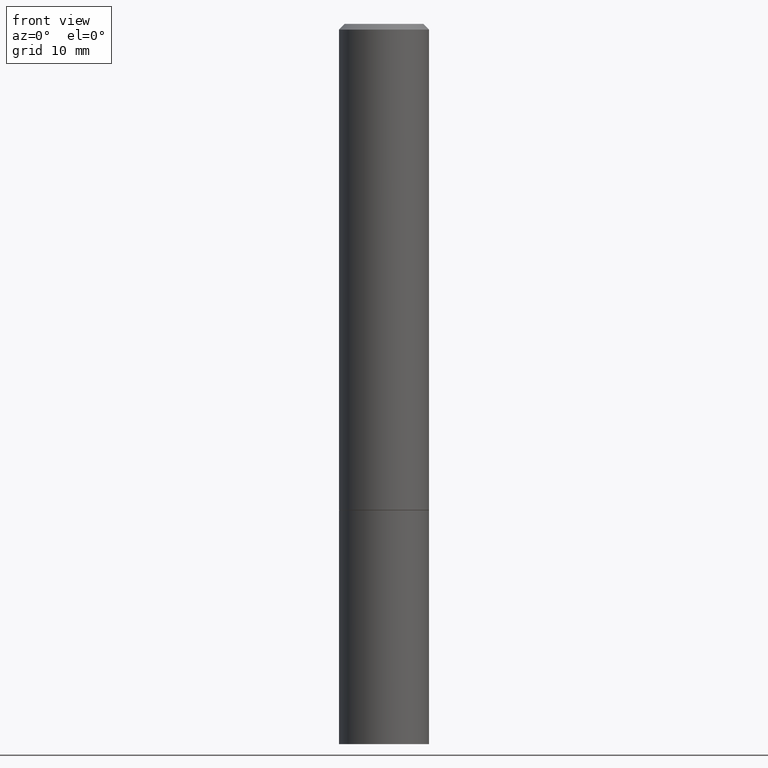
[diagram: clean part render]
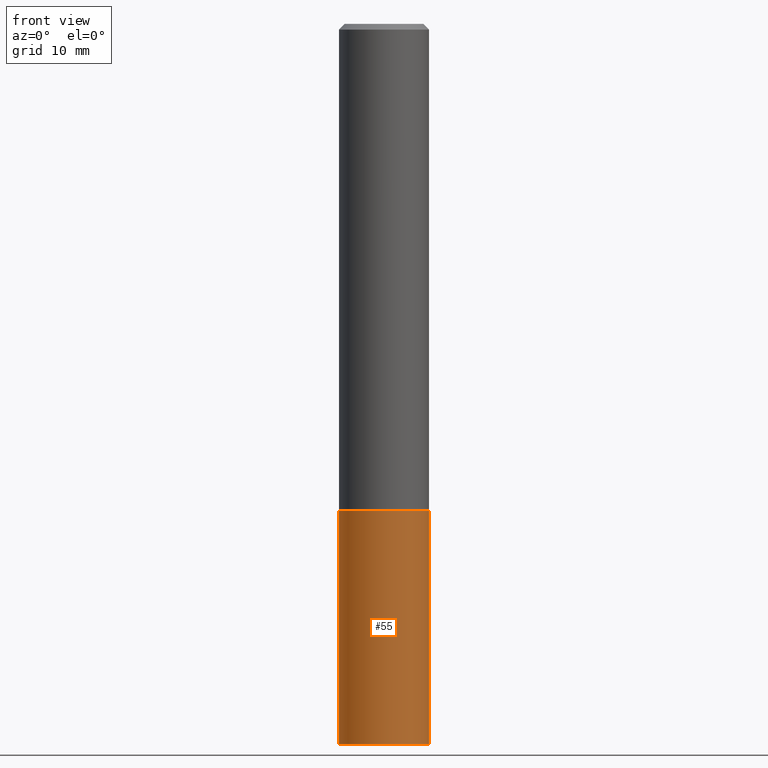
[diagram: same view with one face highlighted and labeled with its STEP entity id]
A machine part, front view. The second image highlights one B-rep face of the part: STEP entity #55.
In plain terms, the highlighted cylindrical surface (partial cylindrical patch) has radius 3.9688 mm, axis along (-0, 0, 1).
Its self-contained STEP definition (entity closure, byte-faithful):
#15 = DIRECTION ( 'NONE',  ( -2.445468806185136597E-29, 3.491481338843145583E-15, 1.000000000000000000 ) ) ;
#24 = VERTEX_POINT ( 'NONE', #105 ) ;
#29 = DIRECTION ( 'NONE',  ( -2.445468806185136877E-29, 3.491481338843145188E-15, 1.000000000000000000 ) ) ;
#33 = DIRECTION ( 'NONE',  ( -2.445468806185136597E-29, 3.491481338843145583E-15, 1.000000000000000000 ) ) ;
#55 = ADVANCED_FACE ( 'NONE', ( #183 ), #297, .T. ) ;
#58 = CARTESIAN_POINT ( 'NONE',  ( -0.1562500000000000000, 1.110223024625156540E-15, -7.685836078523291160E-30 ) ) ;
#62 = DIRECTION ( 'NONE',  ( 1.000000000000000000, -6.982962677686269077E-15, 0.000000000000000000 ) ) ;
#66 = VERTEX_POINT ( 'NONE', #350 ) ;
#69 = EDGE_LOOP ( 'NONE', ( #251, #244, #308, #301 ) ) ;
#77 = EDGE_CURVE ( 'NONE', #356, #66, #334, .T. ) ;
#95 = CARTESIAN_POINT ( 'NONE',  ( 4.127951344840510809E-29, -5.893620499967230340E-15, -1.688000000000000167 ) ) ;
#105 = CARTESIAN_POINT ( 'NONE',  ( -0.1562500000000000000, -6.200938898912389918E-15, -1.688000000000000167 ) ) ;
#120 = EDGE_CURVE ( 'NONE', #306, #356, #305, .T. ) ;
#127 = CARTESIAN_POINT ( 'NONE',  ( 0.1562500000000000000, -9.819791265496344905E-15, -2.500000000000000000 ) ) ;
#130 = EDGE_CURVE ( 'NONE', #306, #24, #340, .T. ) ;
#144 = AXIS2_PLACEMENT_3D ( 'NONE', #202, #33, #204 ) ;
#175 = AXIS2_PLACEMENT_3D ( 'NONE', #95, #317, #62 ) ;
#181 = AXIS2_PLACEMENT_3D ( 'NONE', #271, #15, #355 ) ;
#183 = FACE_OUTER_BOUND ( 'NONE', #69, .T. ) ;
#200 = CARTESIAN_POINT ( 'NONE',  ( 0.1562500000000000000, -1.091087918388479174E-15, 7.619026212181150377E-30 ) ) ;
#202 = CARTESIAN_POINT ( 'NONE',  ( 6.113672015462842613E-29, -8.728703347107864943E-15, -2.500000000000000000 ) ) ;
#204 = DIRECTION ( 'NONE',  ( 1.000000000000000000, -6.982962677686269077E-15, 0.000000000000000000 ) ) ;
#207 = EDGE_CURVE ( 'NONE', #24, #66, #246, .T. ) ;
#244 = ORIENTED_EDGE ( 'NONE', *, *, #120, .T. ) ;
#246 = CIRCLE ( 'NONE', #175, 0.1562500000000000000 ) ;
#251 = ORIENTED_EDGE ( 'NONE', *, *, #130, .F. ) ;
#271 = CARTESIAN_POINT ( 'NONE',  ( 0.000000000000000000, 0.000000000000000000, 0.000000000000000000 ) ) ;
#297 = CYLINDRICAL_SURFACE ( 'NONE', #181, 0.1562500000000000000 ) ;
#301 = ORIENTED_EDGE ( 'NONE', *, *, #207, .F. ) ;
#305 = CIRCLE ( 'NONE', #144, 0.1562500000000000000 ) ;
#306 = VERTEX_POINT ( 'NONE', #347 ) ;
#308 = ORIENTED_EDGE ( 'NONE', *, *, #77, .T. ) ;
#311 = DIRECTION ( 'NONE',  ( -2.445468806185136877E-29, 3.491481338843145188E-15, 1.000000000000000000 ) ) ;
#312 = VECTOR ( 'NONE', #29, 39.37007874015748143 ) ;
#317 = DIRECTION ( 'NONE',  ( -2.445468806185136597E-29, 3.491481338843145583E-15, 1.000000000000000000 ) ) ;
#334 = LINE ( 'NONE', #200, #312 ) ;
#340 = LINE ( 'NONE', #58, #346 ) ;
#346 = VECTOR ( 'NONE', #311, 39.37007874015748143 ) ;
#347 = CARTESIAN_POINT ( 'NONE',  ( -0.1562500000000000000, -6.200938898912389918E-15, -2.500000000000000000 ) ) ;
#350 = CARTESIAN_POINT ( 'NONE',  ( 0.1562500000000000000, -6.984708418355709513E-15, -1.688000000000000167 ) ) ;
#355 = DIRECTION ( 'NONE',  ( 1.000000000000000000, -6.982962677686266711E-15, 4.876176775795936353E-29 ) ) ;
#356 = VERTEX_POINT ( 'NONE', #127 ) ;